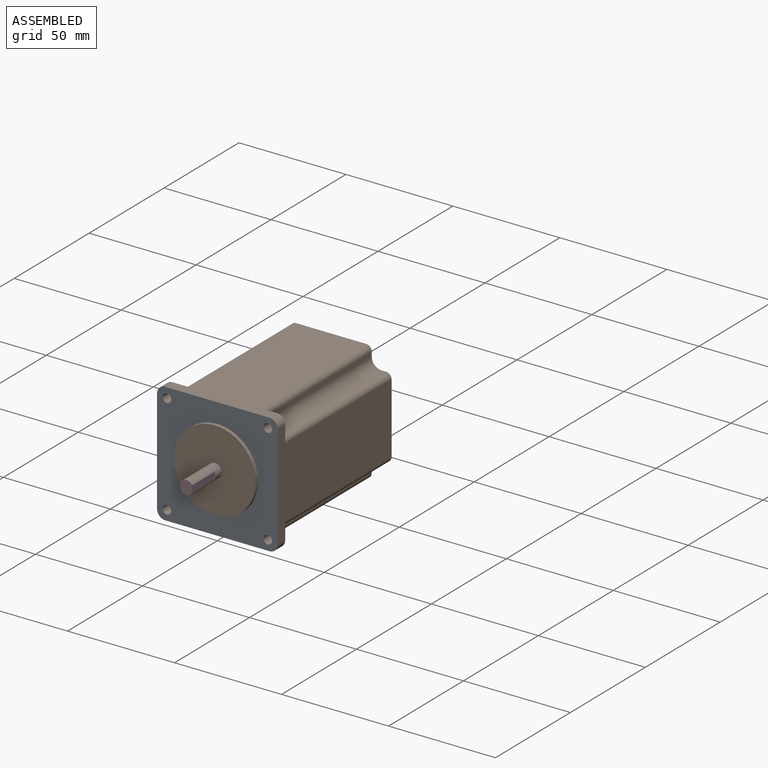
[diagram: assembled view]
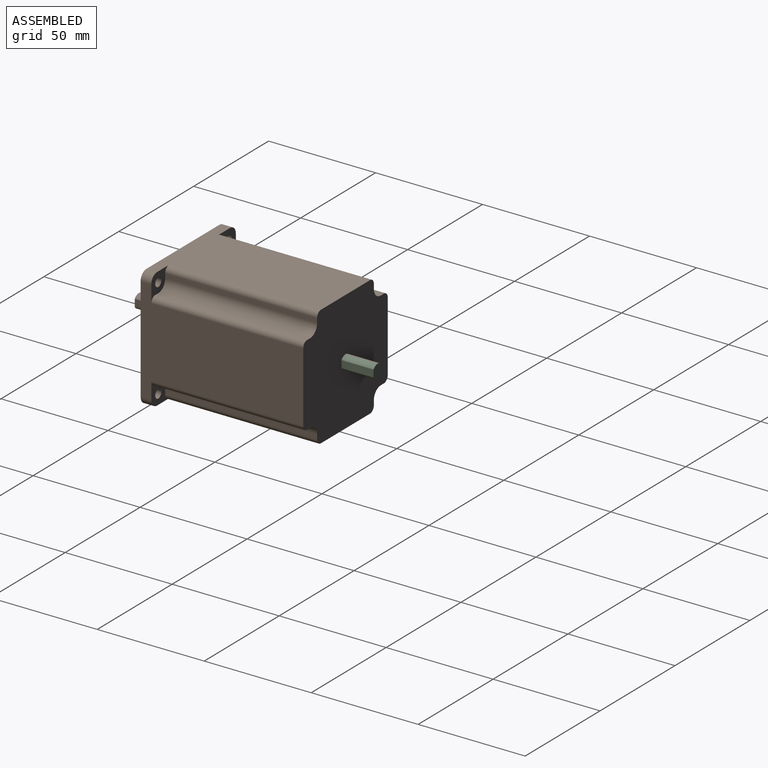
[diagram: assembled view, second angle]
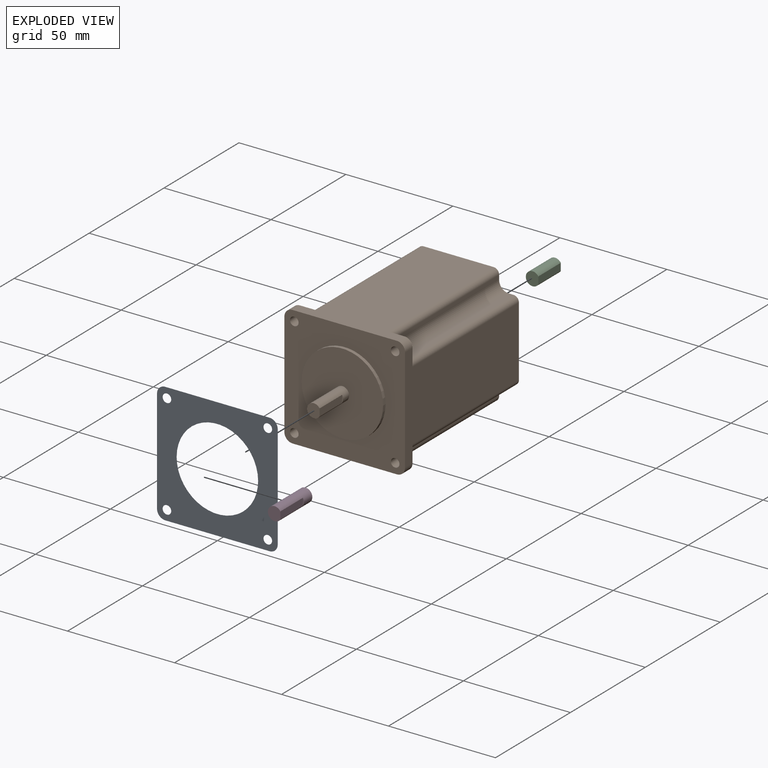
[diagram: exploded view]
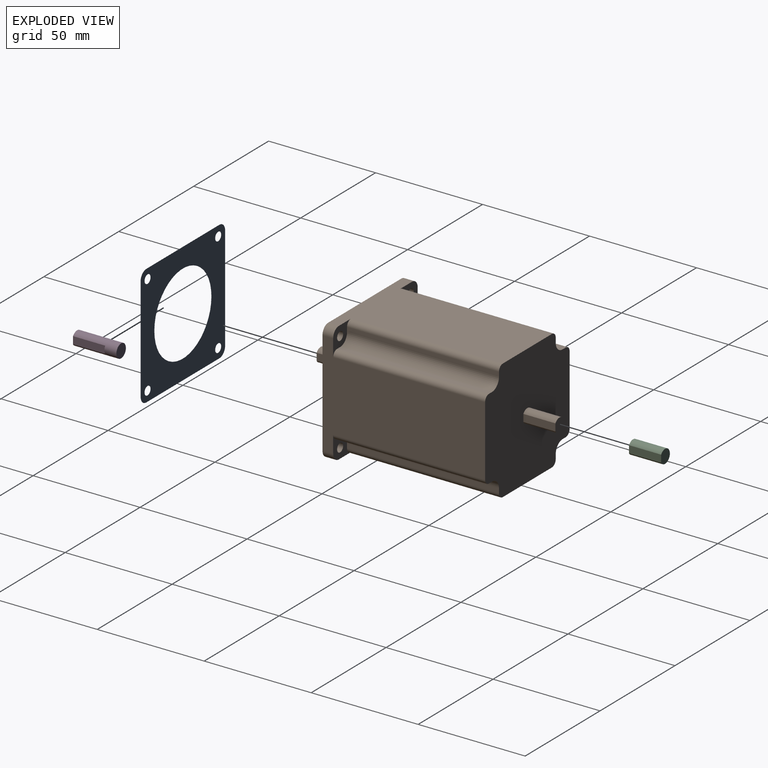
[diagram: exploded view, second angle]
ASSEMBLY  parts=4 mates=2
PART A: 15 faces, bbox 56.4x0x56.4 mm
  f0: plane 48.78x0mm, normal (1,0,0), area 0.1mm2, adj f1,f12,f13,f14
  f1: cylinder r=3.81mm len=3.81mm, axis (0,1,0), area 0mm2, adj f0,f2,f13,f14
  f2: plane 48.78x0mm, normal (0,0,1), area 0.1mm2, adj f1,f3,f13,f14
  f3: cylinder r=3.81mm len=3.81mm, axis (0,1,0), area 0mm2, adj f2,f4,f13,f14
  f4: plane 48.78x0mm, normal (-1,0,0), area 0.1mm2, adj f3,f5,f13,f14
  f5: cylinder r=3.81mm len=3.81mm, axis (0,1,0), area 0mm2, adj f4,f6,f13,f14
  f6: plane 48.78x0mm, normal (0,0,-1), area 0.1mm2, adj f5,f12,f13,f14
  f7: cylinder r=2mm len=4mm, axis (0,1,0), area 0mm2, adj f13,f14
  f8: cylinder r=2mm len=4mm, axis (0,1,0), area 0mm2, adj f13,f14
  f9: cylinder r=2mm len=4mm, axis (0,1,0), area 0mm2, adj f13,f14
  f10: cylinder r=2mm len=4mm, axis (0,1,0), area 0mm2, adj f13,f14
  f11: cylinder r=19.05mm len=38.1mm, axis (0,1,0), area 0.3mm2, adj f13,f14
  f12: cylinder r=3.81mm len=3.81mm, axis (0,1,0), area 0mm2, adj f0,f6,f13,f14
  f13: plane 56.4x56.4mm, normal (0,-1,0), area 1978.1mm2, adj f0,f1,f2,f3,f4,f5,f6,f7
  f14: plane 56.4x56.4mm, normal (0,1,0), area 1978.1mm2, adj f0,f1,f2,f3,f4,f5,f6,f7
PART B: 47 faces, bbox 56.4x111.6x56.4 mm
  f0: plane 15x3.42mm, normal (1,0,0), area 51.3mm2, adj f44,f45,f46
  f1: plane 11.8x11.8mm, normal (0,1,0), area 68.2mm2, adj f4,f5,f12,f15,f21,f22,f29,f34
  f2: plane 11.8x11.8mm, normal (0,1,0), area 68.2mm2, adj f5,f6,f7,f11,f23,f24,f30,f36
  f3: plane 11.8x11.8mm, normal (0,1,0), area 68.2mm2, adj f7,f8,f9,f14,f25,f26,f31,f38
  f4: cylinder r=3.81mm len=5mm, axis (0,-1,0), area 29.9mm2, adj f1,f5,f15,f17
  f5: plane 76x48.78mm, normal (0,0,1), area 2572.7mm2, adj f1,f2,f4,f6,f17,f32,f35,f36
  f6: cylinder r=3.81mm len=5mm, axis (0,-1,0), area 29.9mm2, adj f2,f5,f7,f17
  f7: plane 76x48.78mm, normal (-1,0,0), area 2572.7mm2, adj f2,f3,f6,f8,f17,f32,f37,f38
  f8: cylinder r=3.81mm len=5mm, axis (0,-1,0), area 29.9mm2, adj f3,f7,f9,f17
  f9: plane 76x48.78mm, normal (0,0,-1), area 2572.7mm2, adj f3,f8,f10,f16,f17,f32,f39,f40
  f10: cylinder r=3.81mm len=5mm, axis (0,-1,0), area 29.9mm2, adj f9,f15,f16,f17
  f11: cylinder r=2mm len=5mm, axis (0,-1,0), area 62.8mm2, adj f2,f17
  f12: cylinder r=2mm len=5mm, axis (0,-1,0), area 62.8mm2, adj f1,f17
  f13: cylinder r=2mm len=5mm, axis (0,-1,0), area 62.8mm2, adj f16,f17
  f14: cylinder r=2mm len=5mm, axis (0,-1,0), area 62.8mm2, adj f3,f17
  f15: plane 76x48.78mm, normal (1,0,0), area 2572.7mm2, adj f1,f4,f10,f16,f17,f32,f33,f34
  f16: plane 11.8x11.8mm, normal (0,1,0), area 68.2mm2, adj f9,f10,f13,f15,f20,f27,f28,f33
  f17: plane 56.4x56.4mm, normal (0,-1,0), area 1978.1mm2, adj f4,f5,f6,f7,f8,f9,f10,f11
  f18: cylinder r=19.05mm len=38.1mm, axis (0,1,0), area 191.5mm2, adj f17,f19
  f19: plane 38.1x38.1mm, normal (0,-1,0), area 1108.4mm2, adj f18,f45
  f20: plane 71x2.09mm, normal (0,0,-1), area 148.4mm2, adj f16,f28,f32,f33
  f21: plane 71x2.09mm, normal (0,0,1), area 148.4mm2, adj f1,f29,f32,f34
  f22: plane 71x2.09mm, normal (1,0,0), area 148.4mm2, adj f1,f29,f32,f35
  f23: plane 71x2.09mm, normal (-1,0,0), area 148.4mm2, adj f2,f30,f32,f36
  f24: plane 71x2.09mm, normal (0,0,1), area 148.4mm2, adj f2,f30,f32,f37
  f25: plane 71x2.09mm, normal (0,0,-1), area 148.4mm2, adj f3,f31,f32,f38
  f26: plane 71x2.09mm, normal (-1,0,0), area 148.4mm2, adj f3,f31,f32,f39
  f27: plane 71x2.09mm, normal (1,0,0), area 148.4mm2, adj f16,f28,f32,f40
  f28: cylinder r=4.63mm len=71mm, axis (0,-1,0), area 516.4mm2, adj f16,f20,f27,f32
  f29: cylinder r=4.63mm len=71mm, axis (0,-1,0), area 516.4mm2, adj f1,f21,f22,f32
  f30: cylinder r=4.63mm len=71mm, axis (0,-1,0), area 516.4mm2, adj f2,f23,f24,f32
  f31: cylinder r=4.63mm len=71mm, axis (0,-1,0), area 516.4mm2, adj f3,f25,f26,f32
  f32: plane 56.4x56.4mm, normal (0,1,0), area 2814.8mm2, adj f5,f7,f9,f15,f20,f21,f22,f23
  f33: cylinder r=2.54mm len=71mm, axis (0,-1,0), area 283.3mm2, adj f15,f16,f20,f32
  f34: cylinder r=2.54mm len=71mm, axis (0,1,0), area 283.3mm2, adj f1,f15,f21,f32
  f35: cylinder r=2.54mm len=71mm, axis (0,-1,0), area 283.3mm2, adj f1,f5,f22,f32
  f36: cylinder r=2.54mm len=71mm, axis (0,1,0), area 283.3mm2, adj f2,f5,f23,f32
  f37: cylinder r=2.54mm len=71mm, axis (0,1,0), area 283.3mm2, adj f2,f7,f24,f32
  f38: cylinder r=2.54mm len=71mm, axis (0,-1,0), area 283.3mm2, adj f3,f7,f25,f32
  f39: cylinder r=2.54mm len=71mm, axis (0,1,0), area 283.3mm2, adj f3,f9,f26,f32
  f40: cylinder r=2.54mm len=71mm, axis (0,-1,0), area 283.3mm2, adj f9,f16,f27,f32
  f41: plane 6.35x5.85mm, normal (0,1,0), area 30.5mm2, adj f42,f43
  f42: cylinder r=3.17mm len=15mm, axis (0,-1,0), area 245.1mm2, adj f32,f41,f43
  f43: plane 15x3.42mm, normal (1,0,0), area 51.3mm2, adj f32,f41,f42
  f44: plane 6.35x5.85mm, normal (0,-1,0), area 30.5mm2, adj f0,f45
  f45: cylinder r=3.17mm len=19mm, axis (0,-1,0), area 324.8mm2, adj f0,f19,f44,f46
  f46: plane 3.42x0.5mm, normal (0,-1,0), area 1.2mm2, adj f0,f45
PART C: 4 faces, bbox 5.9x15x6.4 mm
  f0: plane 15x3.42mm, normal (1,0,0), area 51.3mm2, adj f1,f2,f3
  f1: cylinder r=3.17mm len=15mm, axis (0,-1,0), area 245.1mm2, adj f0,f2,f3
  f2: plane 6.35x5.85mm, normal (0,1,0), area 30.5mm2, adj f0,f1
  f3: plane 6.35x5.85mm, normal (0,-1,0), area 30.5mm2, adj f0,f1
PART D: 5 faces, bbox 6.4x20.6x6.4 mm
  f0: cylinder r=3.17mm len=20.6mm, axis (0,1,0), area 356.8mm2, adj f1,f2,f3,f4
  f1: plane 6.35x5.85mm, normal (0,-1,0), area 30.5mm2, adj f0,f4
  f2: plane 6.35x6.35mm, normal (0,1,0), area 31.7mm2, adj f0
  f3: plane 3.42x0.5mm, normal (0,-1,0), area 1.2mm2, adj f0,f4
  f4: plane 15x3.42mm, normal (1,0,0), area 51.3mm2, adj f0,f1,f3
PLACE A at identity
PLACE B at identity
PLACE C at identity
PLACE D at identity
MATE fastened A.f8 <-> B.f12  axis (0,1,0) through (23.57,0,23.57)mm
MATE fastened B.f18 <-> C.f1  axis (0,1,0) through (0,76,0)mm
